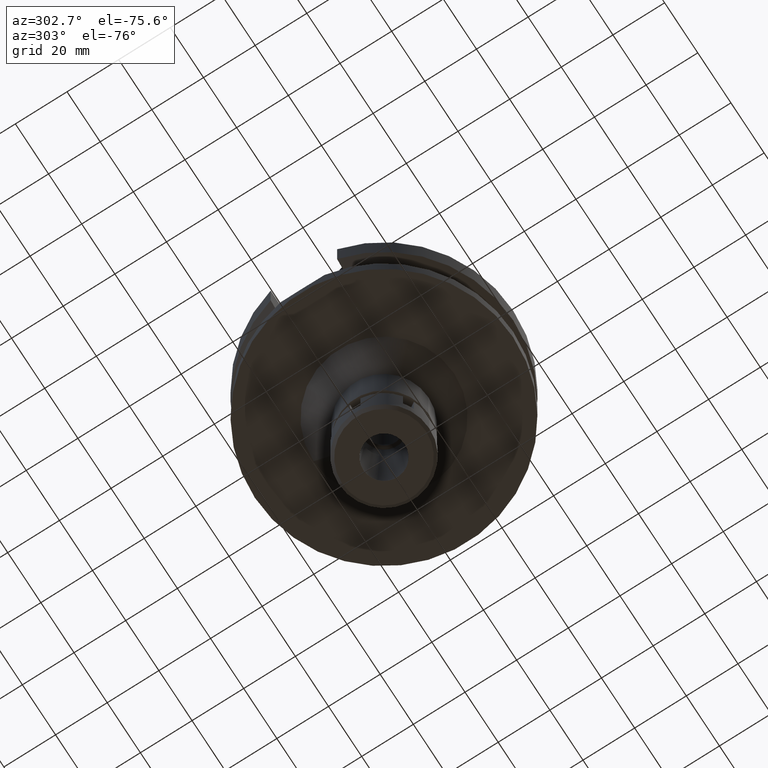
[diagram: clean part render]
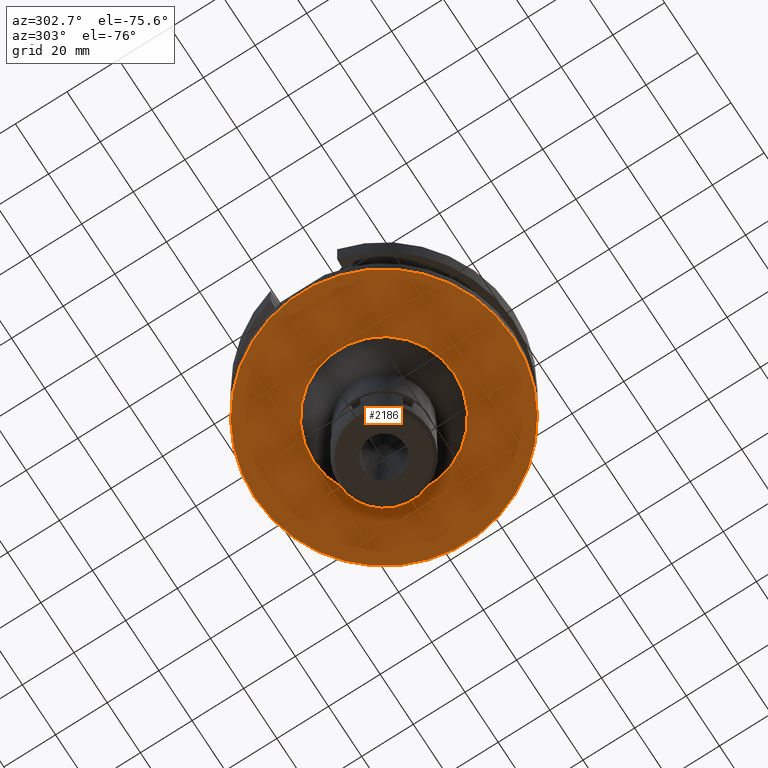
[diagram: same view with one face highlighted and labeled with its STEP entity id]
A machine part, auxiliary view. The second image highlights one B-rep face of the part: STEP entity #2186.
In plain terms, the highlighted planar face has unit normal (0, 0, -1).
Its self-contained STEP definition (entity closure, byte-faithful):
#284 = EDGE_CURVE ( 'NONE', #1081, #1327, #1136, .T. ) ;
#381 = ORIENTED_EDGE ( 'NONE', *, *, #1667, .F. ) ;
#389 = DIRECTION ( 'NONE',  ( 0.0000000000000000000, 1.000000000000000000, 0.0000000000000000000 ) ) ;
#487 = CARTESIAN_POINT ( 'NONE',  ( 0.0000000000000000000, 0.0000000000000000000, -38.00000000000000000 ) ) ;
#543 = AXIS2_PLACEMENT_3D ( 'NONE', #3175, #2053, #1547 ) ;
#551 = EDGE_CURVE ( 'NONE', #3217, #1070, #2587, .T. ) ;
#553 = DIRECTION ( 'NONE',  ( 0.0000000000000000000, -1.000000000000000000, 0.0000000000000000000 ) ) ;
#858 = EDGE_LOOP ( 'NONE', ( #1452, #381 ) ) ;
#1035 = DIRECTION ( 'NONE',  ( 0.0000000000000000000, 0.0000000000000000000, -1.000000000000000000 ) ) ;
#1070 = VERTEX_POINT ( 'NONE', #1346 ) ;
#1081 = VERTEX_POINT ( 'NONE', #2160 ) ;
#1104 = PLANE ( 'NONE',  #1613 ) ;
#1136 = CIRCLE ( 'NONE', #2652, 50.00000000000000000 ) ;
#1182 = CARTESIAN_POINT ( 'NONE',  ( 0.0000000000000000000, 50.00000000000000000, -38.00000000000000000 ) ) ;
#1327 = VERTEX_POINT ( 'NONE', #1182 ) ;
#1331 = DIRECTION ( 'NONE',  ( 0.0000000000000000000, 0.0000000000000000000, 1.000000000000000000 ) ) ;
#1346 = CARTESIAN_POINT ( 'NONE',  ( 0.0000000000000000000, -27.25000000000000000, -38.00000000000000000 ) ) ;
#1348 = FACE_OUTER_BOUND ( 'NONE', #2764, .T. ) ;
#1393 = CARTESIAN_POINT ( 'NONE',  ( 0.0000000000000000000, 0.0000000000000000000, -38.00000000000000000 ) ) ;
#1452 = ORIENTED_EDGE ( 'NONE', *, *, #551, .F. ) ;
#1547 = DIRECTION ( 'NONE',  ( 0.0000000000000000000, -1.000000000000000000, 0.0000000000000000000 ) ) ;
#1613 = AXIS2_PLACEMENT_3D ( 'NONE', #1393, #2196, #553 ) ;
#1654 = AXIS2_PLACEMENT_3D ( 'NONE', #487, #1035, #2135 ) ;
#1667 = EDGE_CURVE ( 'NONE', #1070, #3217, #3570, .T. ) ;
#2053 = DIRECTION ( 'NONE',  ( 0.0000000000000000000, 0.0000000000000000000, -1.000000000000000000 ) ) ;
#2135 = DIRECTION ( 'NONE',  ( 0.0000000000000000000, 1.000000000000000000, 0.0000000000000000000 ) ) ;
#2160 = CARTESIAN_POINT ( 'NONE',  ( 0.0000000000000000000, -50.00000000000000000, -38.00000000000000000 ) ) ;
#2186 = ADVANCED_FACE ( 'NONE', ( #1348, #3596 ), #1104, .T. ) ;
#2196 = DIRECTION ( 'NONE',  ( 0.0000000000000000000, 0.0000000000000000000, -1.000000000000000000 ) ) ;
#2203 = EDGE_CURVE ( 'NONE', #1327, #1081, #3599, .T. ) ;
#2254 = CARTESIAN_POINT ( 'NONE',  ( 0.0000000000000000000, 2.583882281520999630E-14, -38.00000000000000000 ) ) ;
#2587 = CIRCLE ( 'NONE', #1654, 27.25000000000000000 ) ;
#2610 = AXIS2_PLACEMENT_3D ( 'NONE', #3264, #1331, #389 ) ;
#2621 = ORIENTED_EDGE ( 'NONE', *, *, #284, .F. ) ;
#2652 = AXIS2_PLACEMENT_3D ( 'NONE', #2254, #3374, #2830 ) ;
#2699 = ORIENTED_EDGE ( 'NONE', *, *, #2203, .F. ) ;
#2764 = EDGE_LOOP ( 'NONE', ( #2699, #2621 ) ) ;
#2830 = DIRECTION ( 'NONE',  ( 0.0000000000000000000, -1.000000000000000000, 0.0000000000000000000 ) ) ;
#2850 = CARTESIAN_POINT ( 'NONE',  ( 0.0000000000000000000, 27.25000000000000000, -38.00000000000000000 ) ) ;
#3175 = CARTESIAN_POINT ( 'NONE',  ( 0.0000000000000000000, 0.0000000000000000000, -38.00000000000000000 ) ) ;
#3217 = VERTEX_POINT ( 'NONE', #2850 ) ;
#3264 = CARTESIAN_POINT ( 'NONE',  ( 0.0000000000000000000, 2.583882281520999630E-14, -38.00000000000000000 ) ) ;
#3374 = DIRECTION ( 'NONE',  ( 0.0000000000000000000, 0.0000000000000000000, 1.000000000000000000 ) ) ;
#3570 = CIRCLE ( 'NONE', #543, 27.25000000000000000 ) ;
#3596 = FACE_BOUND ( 'NONE', #858, .T. ) ;
#3599 = CIRCLE ( 'NONE', #2610, 50.00000000000000000 ) ;